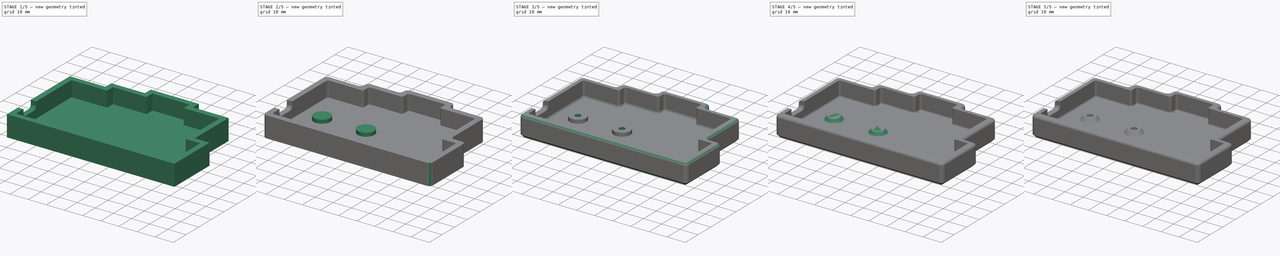
[diagram: build sequence overview — one tinted view per stage of 5, left to right]
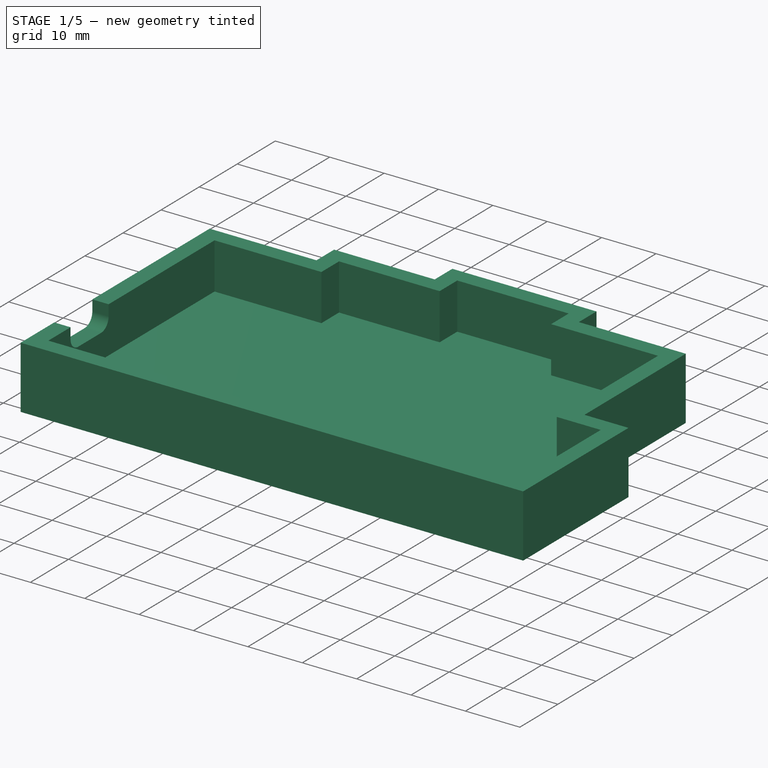
[diagram: stage 1 of 5 — iso view after this stage's code; geometry added in this stage tinted green]
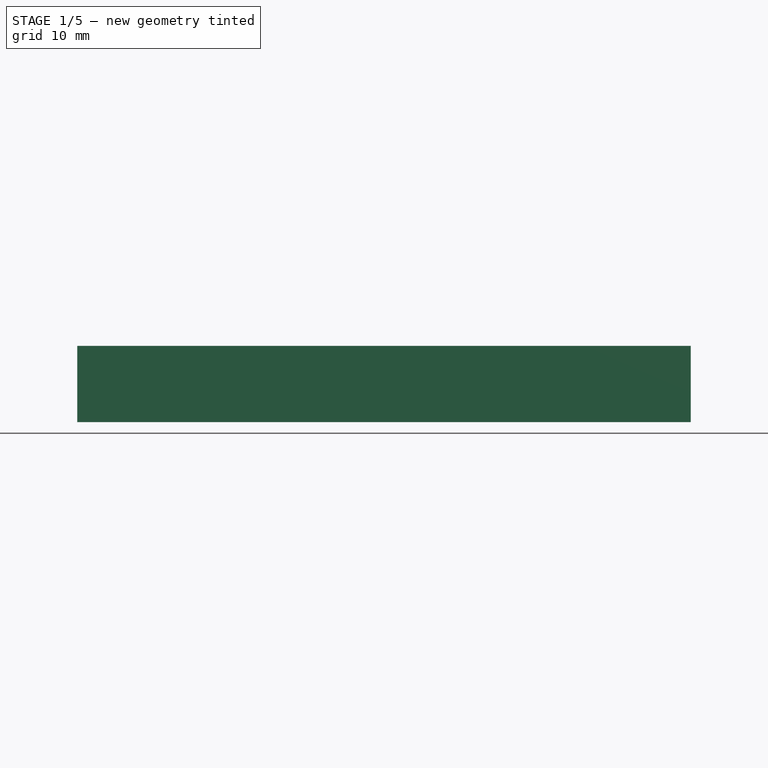
[diagram: stage 1 of 5 — front view after this stage's code; geometry added in this stage tinted green]
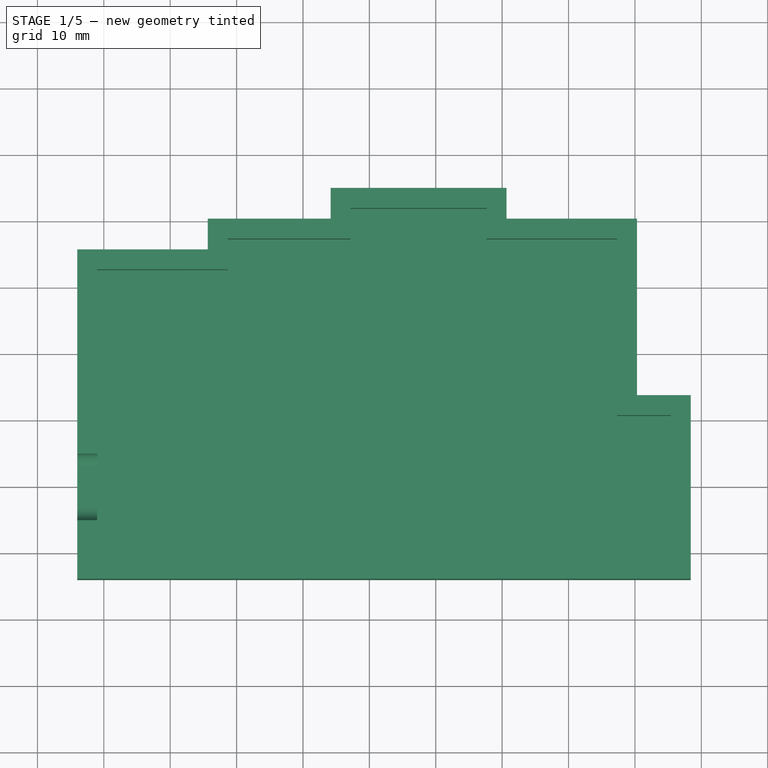
[diagram: stage 1 of 5 — top view after this stage's code; geometry added in this stage tinted green]
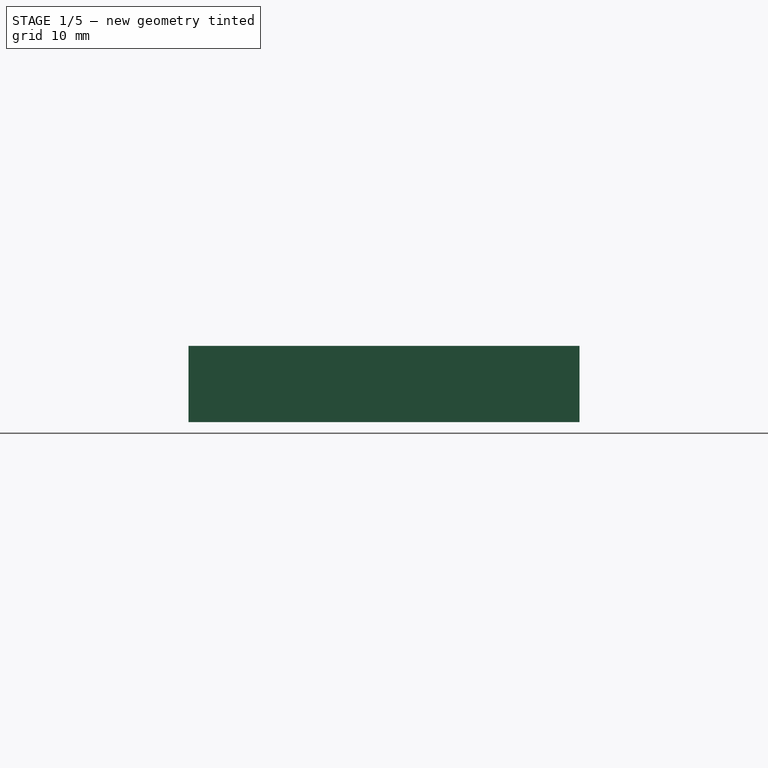
[diagram: stage 1 of 5 — right view after this stage's code; geometry added in this stage tinted green]
FCSTD DOCUMENT  (FreeCAD 0.19R)
Label: Comb03xD
License: All rights reserved
LicenseURL: http://en.wikipedia.org/wiki/All_rights_reserved
objects: Sketcher::SketchObject×8, PartDesign::Fillet×5, PartDesign::Pad×4, PartDesign::Pocket×4, PartDesign::Chamfer×3, PartDesign::Body×2
note: 42 computed .brp shape members not serialized (recipe doc carries the construction recipe); baked Part::Feature solids carry a one-line shape summary decoded from their .brp

FEATURE [PartDesign::Body] Body
  Group = -> [Sketch,Pad,Sketch001,Pad001,Chamfer,Sketch002,Pocket,Fillet]
  Origin = -> Origin
  Tip = -> Fillet
FEATURE [Sketcher::SketchObject] Sketch003
  FullyConstrained = true
  MapMode = 5
  Support = -> [XY_Plane001]
  sketch-geometry (34):
    g0: LineSegment StartX=0 StartY=0 StartZ=0 EndX=0 EndY=41.625 EndZ=0
    g1: LineSegment StartX=0 StartY=41.625 StartZ=0 EndX=19.656 EndY=41.625 EndZ=0
    g2: LineSegment StartX=19.656 StartY=41.625 StartZ=0 EndX=19.656 EndY=46.25 EndZ=0
    g3: LineSegment StartX=19.656 StartY=46.25 StartZ=0 EndX=38.156 EndY=46.25 EndZ=0
    g4: LineSegment StartX=38.156 StartY=46.25 StartZ=0 EndX=38.156 EndY=48.563 EndZ=0
    g5: LineSegment StartX=38.156 StartY=48.563 StartZ=0 EndX=56.656 EndY=48.563 EndZ=0
    g6: LineSegment StartX=56.656 StartY=48.563 StartZ=0 EndX=56.656 EndY=46.25 EndZ=0
    g7: LineSegment StartX=56.656 StartY=46.25 StartZ=0 EndX=76.312 EndY=46.25 EndZ=0
    g8: LineSegment StartX=76.312 StartY=46.25 StartZ=0 EndX=76.312 EndY=19.656 EndZ=0
    g9: LineSegment StartX=76.312 StartY=19.656 StartZ=0 EndX=84.406 EndY=19.656 EndZ=0
    g10: LineSegment StartX=84.406 StartY=19.656 StartZ=0 EndX=84.406 EndY=0 EndZ=0
    g11: LineSegment StartX=84.406 StartY=0 StartZ=0 EndX=0 EndY=0 EndZ=0
    g12: LineSegment StartX=-4 StartY=-4 StartZ=0 EndX=88.406 EndY=-4 EndZ=0
    g13: LineSegment StartX=88.406 StartY=-4 StartZ=0 EndX=88.406 EndY=23.656 EndZ=0
    g14: LineSegment StartX=88.406 StartY=23.656 StartZ=0 EndX=80.312 EndY=23.656 EndZ=0
    g15: LineSegment StartX=80.312 StartY=23.656 StartZ=0 EndX=80.312 EndY=50.25 EndZ=0
    g16: LineSegment StartX=80.312 StartY=50.25 StartZ=0 EndX=60.656 EndY=50.25 EndZ=0
    g17: LineSegment StartX=60.656 StartY=50.25 StartZ=0 EndX=60.656 EndY=54.875 EndZ=0
    g18: LineSegment StartX=60.656 StartY=54.875 StartZ=0 EndX=34.156 EndY=54.875 EndZ=0
    g19: LineSegment StartX=34.156 StartY=54.875 StartZ=0 EndX=34.156 EndY=50.25 EndZ=0
    g20: LineSegment StartX=34.156 StartY=50.25 StartZ=0 EndX=15.656 EndY=50.25 EndZ=0
    g21: LineSegment StartX=15.656 StartY=50.25 StartZ=0 EndX=15.656 EndY=45.625 EndZ=0
    g22: LineSegment StartX=15.656 StartY=45.625 StartZ=0 EndX=-4 EndY=45.625 EndZ=0
    g23: LineSegment StartX=-4 StartY=45.625 StartZ=0 EndX=-4 EndY=-4 EndZ=0
    g24: LineSegment StartX=-4 StartY=-4 StartZ=0 EndX=0 EndY=0 EndZ=0
    g25: LineSegment StartX=84.406 StartY=0 StartZ=0 EndX=88.406 EndY=-4 EndZ=0
    g26: LineSegment StartX=84.406 StartY=19.656 StartZ=0 EndX=88.406 EndY=23.656 EndZ=0
    g27: LineSegment StartX=76.312 StartY=19.656 StartZ=0 EndX=80.312 EndY=23.656 EndZ=0
    g28: LineSegment StartX=76.312 StartY=46.25 StartZ=0 EndX=80.312 EndY=50.25 EndZ=0
    g29: LineSegment StartX=56.656 StartY=46.25 StartZ=0 EndX=60.656 EndY=50.25 EndZ=0
    g30: LineSegment StartX=34.156 StartY=50.25 StartZ=0 EndX=38.156 EndY=46.25 EndZ=0
    g31: LineSegment StartX=15.656 StartY=50.25 StartZ=0 EndX=19.656 EndY=46.25 EndZ=0
    g32: LineSegment StartX=15.656 StartY=45.625 StartZ=0 EndX=19.656 EndY=41.625 EndZ=0
    g33: LineSegment StartX=-4 StartY=45.625 StartZ=0 EndX=0 EndY=41.625 EndZ=0
  constraints (91):
    c: Coincident(g0,g-1)
    c: Coincident(g1,g0)
    c: Horizontal(g1)
    c: Coincident(g2,g1)
    c: Coincident(g3,g2)
    c: Horizontal(g3)
    c: Coincident(g4,g3)
    c: Vertical(g4)
    c: Coincident(g5,g4)
    c: Horizontal(g5)
    c: Coincident(g6,g5)
    c: Coincident(g7,g6)
    c: Horizontal(g7)
    c: Coincident(g8,g7)
    c: Vertical(g8)
    c: Coincident(g9,g8)
    c: Coincident(g10,g9)
    c: Coincident(g11,g10)
    c: Coincident(g11,g0)
    c: Horizontal(g11)
    c: Vertical(g10)
    c: Horizontal(g9)
    c: Vertical(g2)
    c: Vertical(g6)
    c: Vertical(g0)
    c: DistanceX(g11,g11) = 84.406
    c: Equal(g10,g1)
    c: Equal(g1,g7)
    c: Equal(g3,g5)
    c: DistanceX(g3,g3) = 18.5
    c: DistanceX(g1,g1) = 19.656
    c: DistanceY(g8,g8) = 26.594
    c: Equal(g4,g6)
    c: DistanceY(g2,g2) = 4.625
    c: DistanceY(g6,g6) = 2.313
    c: Horizontal(g12)
    c: Coincident(g13,g12)
    c: Vertical(g13)
    c: Coincident(g14,g13)
    c: Horizontal(g14)
    c: Coincident(g15,g14)
    c: Vertical(g15)
    c: Coincident(g16,g15)
    c: Horizontal(g16)
    c: Coincident(g17,g16)
    c: Vertical(g17)
    c: Coincident(g18,g17)
    c: Horizontal(g18)
    c: Coincident(g19,g18)
    c: Coincident(g20,g19)
    c: Horizontal(g20)
    c: Vertical(g19)
    c: Coincident(g21,g20)
    c: Vertical(g21)
    c: Coincident(g22,g21)
    c: Horizontal(g22)
    c: Coincident(g23,g22)
    c: Coincident(g23,g12)
    c: Vertical(g23)
    c: Coincident(g24,g12)
    c: Coincident(g24,g-1)
    c: Coincident(g25,g10)
    c: Coincident(g25,g12)
    c: Coincident(g26,g9)
    c: Coincident(g26,g13)
    c: Equal(g26,g25)
    c: Equal(g25,g24)
    c: DistanceX(g24,g24) = 4
    c: DistanceY(g12,g-1) = 4
    c: Coincident(g27,g8)
    c: Coincident(g27,g14)
    c: Coincident(g28,g7)
    c: Coincident(g28,g15)
    c: Coincident(g29,g6)
    c: Coincident(g29,g16)
    c: Coincident(g30,g19)
    c: Coincident(g30,g3)
    c: Coincident(g31,g20)
    c: Coincident(g31,g2)
    c: Coincident(g32,g21)
    c: Coincident(g32,g1)
    c: Coincident(g33,g22)
    c: Coincident(g33,g0)
    c: Equal(g33,g32)
    c: Equal(g32,g31)
    c: Equal(g31,g30)
    c: Equal(g30,g29)
    c: Equal(g29,g28)
    c: Equal(g28,g27)
    c: Equal(g27,g26)
    c: Equal(g21,g19)
FEATURE [PartDesign::Pad] Pad002
  Direction = (1,1,1)
  Length = 11.5
  Length2 = 100
  Profile = -> Sketch003
  Type = 0
FEATURE [Sketcher::SketchObject] Sketch004
  ExternalGeometry = -> [Pad002]
  FullyConstrained = true
  MapMode = 5
  Placement = pos=(0,0,11.5) rot=(0,0,1;0rad)
  Support = -> [Pad002]
  sketch-geometry (24):
    g0: LineSegment StartX=-1 StartY=42.625 StartZ=0 EndX=18.656 EndY=42.625 EndZ=0
    g1: LineSegment StartX=18.656 StartY=42.625 StartZ=0 EndX=18.656 EndY=47.25 EndZ=0
    g2: LineSegment StartX=18.656 StartY=47.25 StartZ=0 EndX=37.156 EndY=47.25 EndZ=0
    g3: LineSegment StartX=37.156 StartY=47.25 StartZ=0 EndX=37.156 EndY=51.875 EndZ=0
    g4: LineSegment StartX=37.156 StartY=51.875 StartZ=0 EndX=57.656 EndY=51.875 EndZ=0
    g5: LineSegment StartX=57.656 StartY=51.875 StartZ=0 EndX=57.656 EndY=47.25 EndZ=0
    g6: LineSegment StartX=57.656 StartY=47.25 StartZ=0 EndX=77.312 EndY=47.25 EndZ=0
    g7: LineSegment StartX=77.312 StartY=47.25 StartZ=0 EndX=77.312 EndY=20.656 EndZ=0
    g8: LineSegment StartX=77.312 StartY=20.656 StartZ=0 EndX=85.406 EndY=20.656 EndZ=0
    g9: LineSegment StartX=85.406 StartY=20.656 StartZ=0 EndX=85.406 EndY=-1 EndZ=0
    g10: LineSegment StartX=-4 StartY=45.625 StartZ=0 EndX=-1 EndY=42.625 EndZ=0
    g11: LineSegment StartX=15.656 StartY=45.625 StartZ=0 EndX=18.656 EndY=42.625 EndZ=0
    g12: LineSegment StartX=18.656 StartY=47.25 StartZ=0 EndX=15.656 EndY=50.25 EndZ=0
    g13: LineSegment StartX=34.156 StartY=50.25 StartZ=0 EndX=37.156 EndY=47.25 EndZ=0
    g14: LineSegment StartX=37.156 StartY=51.875 StartZ=0 EndX=34.156 EndY=54.875 EndZ=0
    g15: LineSegment StartX=57.656 StartY=51.875 StartZ=0 EndX=60.656 EndY=54.875 EndZ=0
    g16: LineSegment StartX=60.656 StartY=50.25 StartZ=0 EndX=57.656 EndY=47.25 EndZ=0
    g17: LineSegment StartX=77.312 StartY=47.25 StartZ=0 EndX=80.312 EndY=50.25 EndZ=0
    g18: LineSegment StartX=77.312 StartY=20.656 StartZ=0 EndX=80.312 EndY=23.656 EndZ=0
    g19: LineSegment StartX=88.406 StartY=23.656 StartZ=0 EndX=85.406 EndY=20.656 EndZ=0
    g20: LineSegment StartX=85.406 StartY=-1 StartZ=0 EndX=88.406 EndY=-4 EndZ=0
    g21: LineSegment StartX=-4 StartY=-4 StartZ=0 EndX=-1 EndY=-1 EndZ=0
    g22: LineSegment StartX=-1 StartY=-1 StartZ=0 EndX=85.406 EndY=-1 EndZ=0
    g23: LineSegment StartX=-1 StartY=-1 StartZ=0 EndX=-1 EndY=42.625 EndZ=0
  constraints (60):
    c: Horizontal(g0)
    c: Coincident(g1,g0)
    c: Vertical(g1)
    c: Coincident(g2,g1)
    c: Horizontal(g2)
    c: Coincident(g3,g2)
    c: Vertical(g3)
    c: Coincident(g4,g3)
    c: Horizontal(g4)
    c: Coincident(g5,g4)
    c: Vertical(g5)
    c: Coincident(g6,g5)
    c: Horizontal(g6)
    c: Coincident(g7,g6)
    c: Vertical(g7)
    c: Coincident(g8,g7)
    c: Horizontal(g8)
    c: Coincident(g9,g8)
    c: Vertical(g9)
    c: Coincident(g10,g-3)
    c: Coincident(g11,g-4)
    c: Coincident(g11,g0)
    c: Coincident(g12,g1)
    c: Coincident(g12,g-5)
    c: Coincident(g13,g-6)
    c: Coincident(g13,g2)
    c: Coincident(g14,g3)
    c: Coincident(g14,g-7)
    c: Coincident(g15,g4)
    c: Coincident(g15,g-8)
    c: Coincident(g16,g-9)
    c: Coincident(g16,g5)
    c: Coincident(g17,g6)
    c: Coincident(g17,g-10)
    c: Coincident(g18,g7)
    c: Coincident(g18,g-11)
    c: Coincident(g19,g-12)
    c: Coincident(g19,g8)
    c: Coincident(g20,g9)
    c: Coincident(g20,g-13)
    c: Equal(g10,g11)
    c: Equal(g11,g12)
    c: Equal(g12,g13)
    c: Equal(g13,g14)
    c: Equal(g14,g15)
    c: Equal(g15,g16)
    c: Equal(g16,g17)
    c: Equal(g17,g18)
    c: Equal(g18,g19)
    c: Coincident(g21,g-14)
    c: Coincident(g22,g21)
    c: Horizontal(g22)
    c: Coincident(g9,g22)
    c: Coincident(g23,g22)
    c: Coincident(g23,g10)
    c: Vertical(g23)
    c: Coincident(g0,g23)
    c: Equal(g21,g10)
    c: DistanceX(g21,g21) = 3
    c: DistanceY(g21,g22) = 3
FEATURE [PartDesign::Pocket] Pocket001
  BaseFeature = -> Pad002
  Length = 8.5
  Length2 = 100
  Profile = -> Sketch004
  Type = 0
  expr: Length = 11.5 - 3
FEATURE [Sketcher::SketchObject] Sketch005
  ExternalGeometry = -> [Pocket001]
  FullyConstrained = true
  MapMode = 5
  Placement = pos=(85.406,0,0) rot=(0.57735,-0.57735,-0.57735;2.0944rad)
  Support = -> [Pocket001]
  sketch-geometry (8):
    g0: LineSegment StartX=-14.828 StartY=11.5 StartZ=0 EndX=-14.828 EndY=9.5 EndZ=0
    g1: LineSegment StartX=-4.828 StartY=11.5 StartZ=0 EndX=-4.828 EndY=9.5 EndZ=0
    g2: LineSegment StartX=-4.828 StartY=11.5 StartZ=0 EndX=-14.828 EndY=11.5 EndZ=0
    g3: ArcOfCircle CenterX=-12.828 CenterY=9.5 CenterZ=0 NormalX=0 NormalY=0 NormalZ=1 AngleXU=0 Radius=2 StartAngle=3.14159 EndAngle=4.71239
    g4: ArcOfCircle CenterX=-6.828 CenterY=9.5 CenterZ=0 NormalX=0 NormalY=0 NormalZ=1 AngleXU=0 Radius=2 StartAngle=4.71239 EndAngle=6.28319
    g5: LineSegment StartX=-12.828 StartY=7.5 StartZ=0 EndX=-6.828 EndY=7.5 EndZ=0
    g6: LineSegment StartX=-20.656 StartY=11.5 StartZ=0 EndX=-14.828 EndY=11.5 EndZ=0
    g7: LineSegment StartX=-4.828 StartY=11.5 StartZ=0 EndX=1 EndY=11.5 EndZ=0
  constraints (24):
    c: PointOnObject(g0,g-3)
    c: Vertical(g0)
    c: PointOnObject(g1,g-3)
    c: Vertical(g1)
    c: Coincident(g2,g1)
    c: Coincident(g2,g0)
    c: Coincident(g3,g0)
    c: Coincident(g4,g1)
    c: Horizontal(g0,g3)
    c: Horizontal(g3,g4)
    c: Horizontal(g4,g1)
    c: Vertical(g3,g3)
    c: Vertical(g4,g4)
    c: Coincident(g5,g3)
    c: Coincident(g5,g4)
    c: Horizontal(g5)
    c: DistanceX(g2,g2) = 10
    c: DistanceY(g1,g1) = 2
    c: Radius(g4) = 2
    c: Coincident(g6,g-3)
    c: Coincident(g6,g0)
    c: Coincident(g7,g1)
    c: Coincident(g7,g-3)
    c: Equal(g6,g7)
FEATURE [PartDesign::Pocket] Pocket002
  BaseFeature = -> Pocket001
  Length = 97
  Length2 = 100
  Profile = -> Sketch005
  Reversed = true
  Type = 0
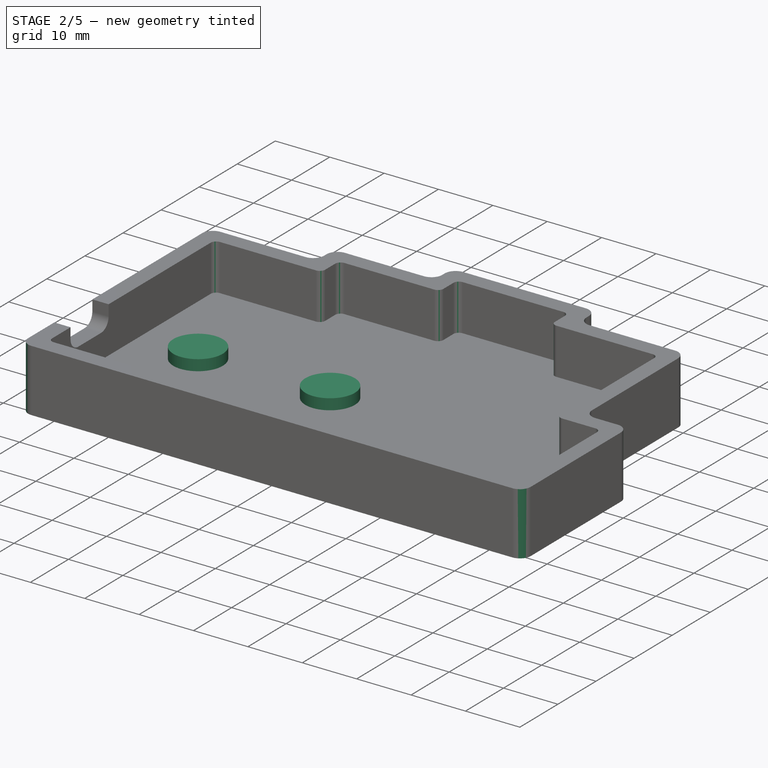
[diagram: stage 2 of 5 — iso view after this stage's code; geometry added in this stage tinted green]
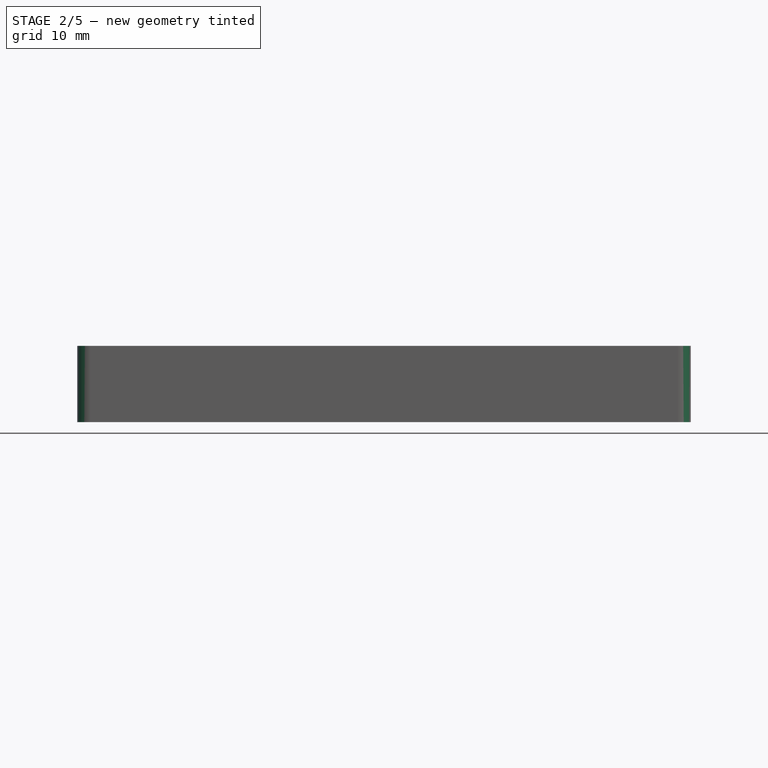
[diagram: stage 2 of 5 — front view after this stage's code; geometry added in this stage tinted green]
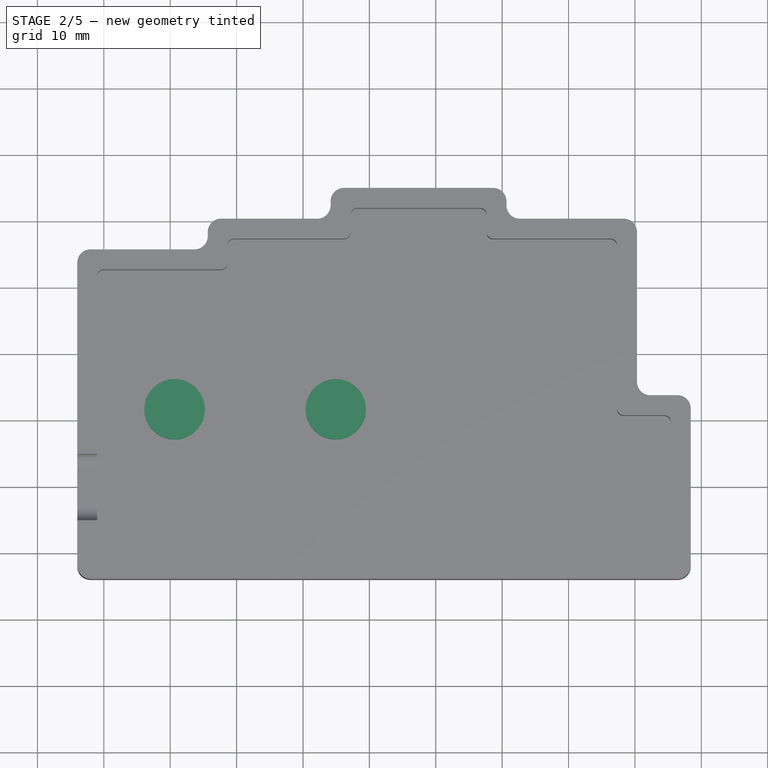
[diagram: stage 2 of 5 — top view after this stage's code; geometry added in this stage tinted green]
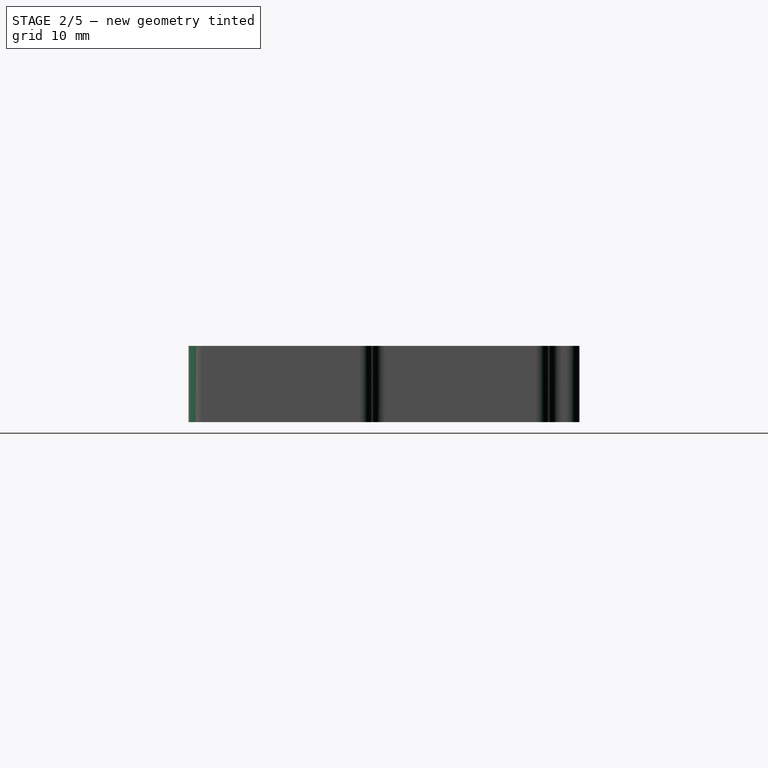
[diagram: stage 2 of 5 — right view after this stage's code; geometry added in this stage tinted green]
FEATURE [Sketcher::SketchObject] Sketch006
  FullyConstrained = true
  MapMode = 5
  Placement = pos=(0,0,3) rot=(0,0,1;0rad)
  sketch-geometry (5):
    g0: LineSegment StartX=0 StartY=21.655 StartZ=0 EndX=10.656 EndY=21.655 EndZ=0
    g1: LineSegment StartX=10.656 StartY=21.655 StartZ=0 EndX=10.656 EndY=0 EndZ=0
    g2: LineSegment StartX=10.656 StartY=21.655 StartZ=0 EndX=34.937 EndY=21.655 EndZ=0
    g3: Circle CenterX=10.656 CenterY=21.655 CenterZ=0 NormalX=0 NormalY=0 NormalZ=1 AngleXU=0 Radius=4.55
    g4: Circle CenterX=34.937 CenterY=21.655 CenterZ=0 NormalX=0 NormalY=0 NormalZ=1 AngleXU=0 Radius=4.55
  constraints (14):
    c: PointOnObject(g0,g-2)
    c: Horizontal(g0)
    c: Coincident(g1,g0)
    c: PointOnObject(g1,g-1)
    c: Vertical(g1)
    c: Coincident(g2,g0)
    c: Horizontal(g2)
    c: DistanceX(g2,g2) = 24.281
    c: DistanceX(g0,g0) = 10.656
    c: DistanceY(g1,g1) = 21.655
    c: Coincident(g3,g0)
    c: Coincident(g4,g2)
    c: Equal(g4,g3)
    c: Diameter(g4) = 9.1
FEATURE [PartDesign::Pad] Pad003
  BaseFeature = -> Pocket002
  Direction = (1,1,1)
  Length = 2
  Length2 = 100
  Profile = -> Sketch006
  Type = 0
FEATURE [PartDesign::Fillet] Fillet001
  Base = -> Pad003 [Edge95,Edge69,Edge93,Edge91,Edge89,Edge85,Edge81,Edge87,Edge83,Edge80,Edge72,Edge71]
  BaseFeature = -> Pad003
  Radius = 1
  SupportTransform = false
FEATURE [PartDesign::Fillet] Fillet002
  Base = -> Fillet001 [Edge58,Edge66,Edge75,Edge77,Edge79,Edge83,Edge87,Edge91,Edge99,Edge63,Edge95,Edge103]
  BaseFeature = -> Fillet001
  Radius = 2
  SupportTransform = false
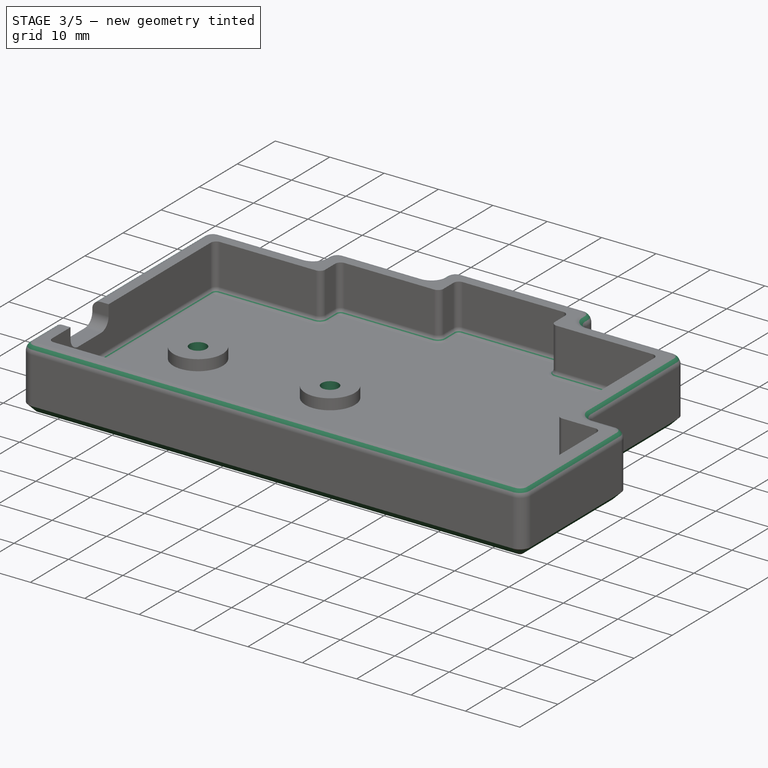
[diagram: stage 3 of 5 — iso view after this stage's code; geometry added in this stage tinted green]
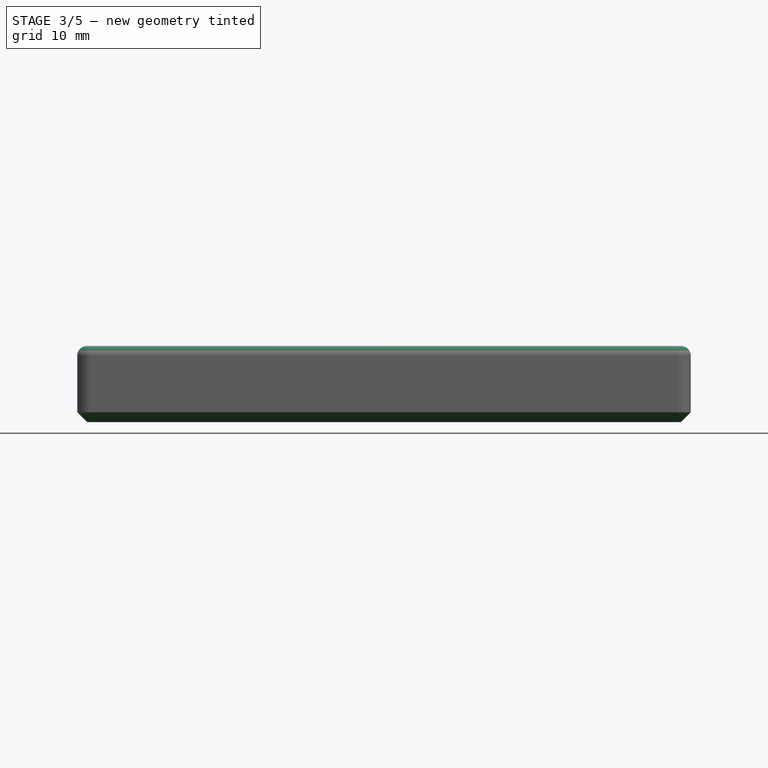
[diagram: stage 3 of 5 — front view after this stage's code; geometry added in this stage tinted green]
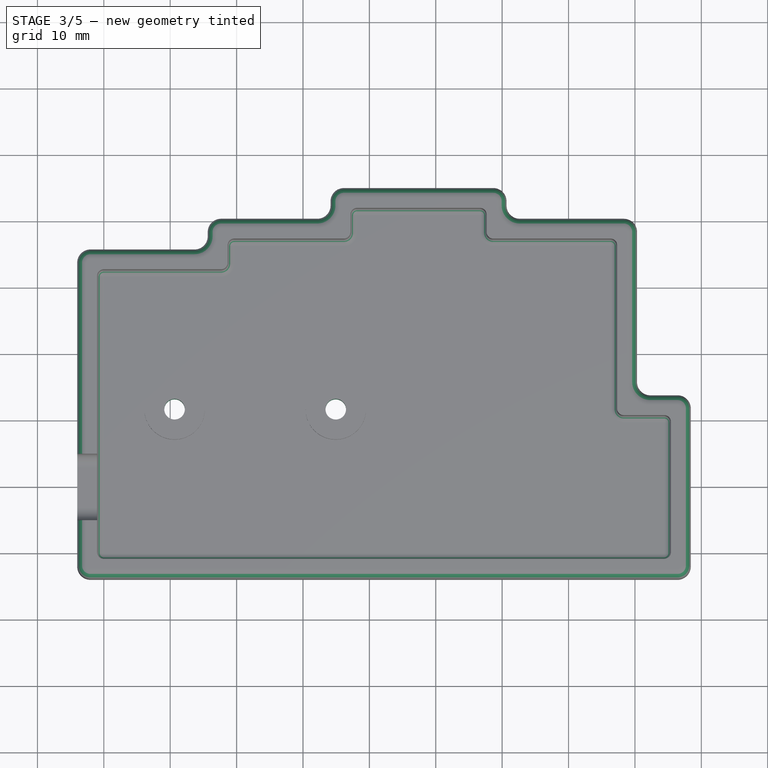
[diagram: stage 3 of 5 — top view after this stage's code; geometry added in this stage tinted green]
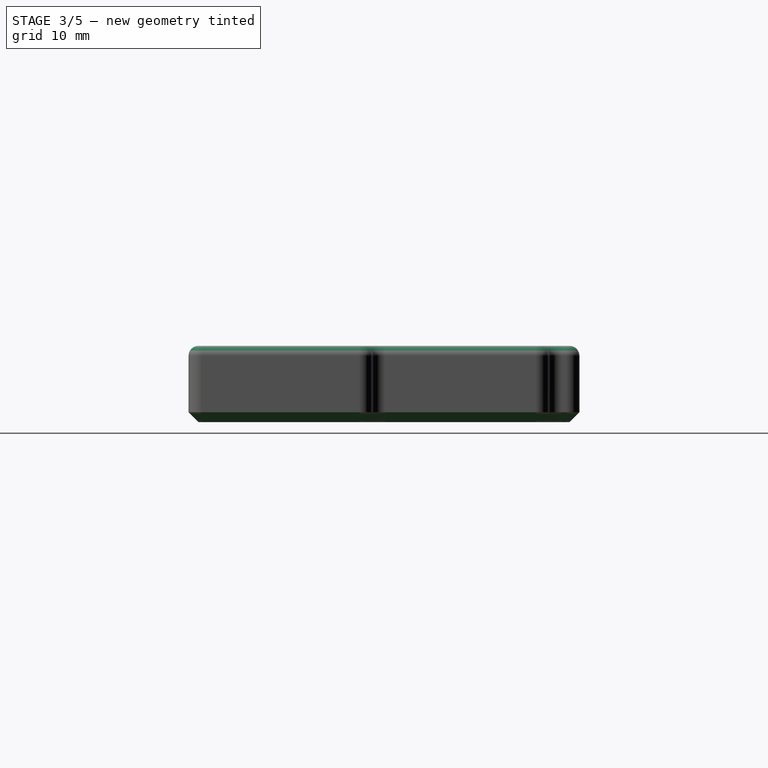
[diagram: stage 3 of 5 — right view after this stage's code; geometry added in this stage tinted green]
FEATURE [PartDesign::Fillet] Fillet003
  Base = -> Fillet002 [Edge4]
  BaseFeature = -> Fillet002
  Radius = 1.5
  SupportTransform = false
FEATURE [PartDesign::Chamfer] Chamfer001
  Angle = 45
  Base = -> Fillet003 [Edge180]
  BaseFeature = -> Fillet003
  ChamferType = 0
  FlipDirection = false
  Size = 1.5
  Size2 = 1
  SupportTransform = false
FEATURE [PartDesign::Fillet] Fillet004
  Base = -> Chamfer001 [Edge226]
  BaseFeature = -> Chamfer001
  Radius = 1
  SupportTransform = false
FEATURE [Sketcher::SketchObject] Sketch007
  ExternalGeometry = -> [Fillet004]
  FullyConstrained = true
  MapMode = 5
  Placement = pos=(0,0,5) rot=(0,0,1;0rad)
  Support = -> [Fillet004]
  sketch-geometry (2):
    g0: Circle CenterX=10.656 CenterY=21.655 CenterZ=0 NormalX=0 NormalY=0 NormalZ=1 AngleXU=0 Radius=1.55
    g1: Circle CenterX=34.937 CenterY=21.655 CenterZ=0 NormalX=0 NormalY=0 NormalZ=1 AngleXU=0 Radius=1.55
  constraints (4):
    c: Coincident(g0,g-3)
    c: Coincident(g1,g-4)
    c: Equal(g1,g0)
    c: Diameter(g1) = 3.1
FEATURE [PartDesign::Pocket] Pocket003
  BaseFeature = -> Fillet004
  Length = 5
  Length2 = 100
  Profile = -> Sketch007
  Type = 0
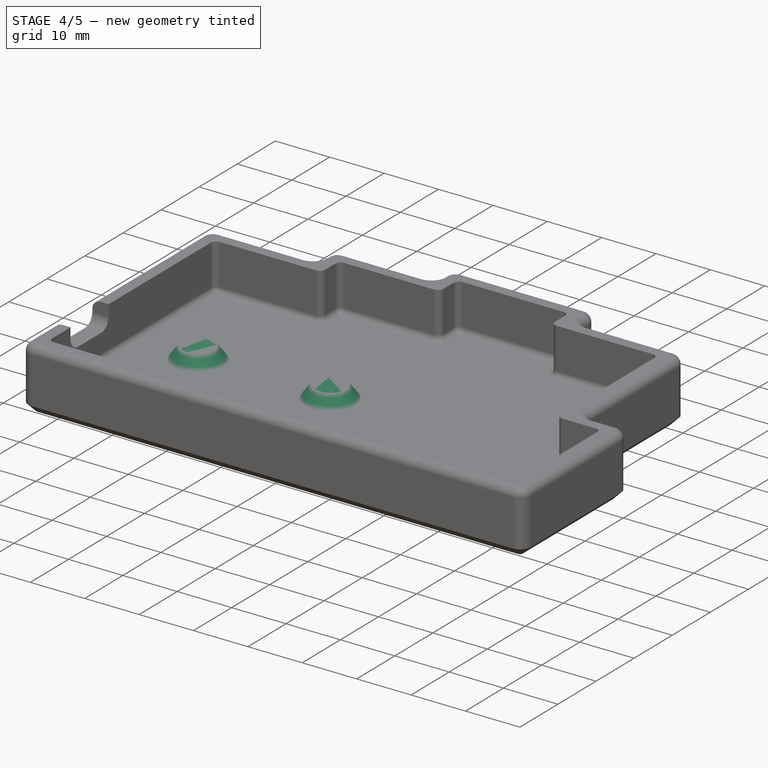
[diagram: stage 4 of 5 — iso view after this stage's code; geometry added in this stage tinted green]
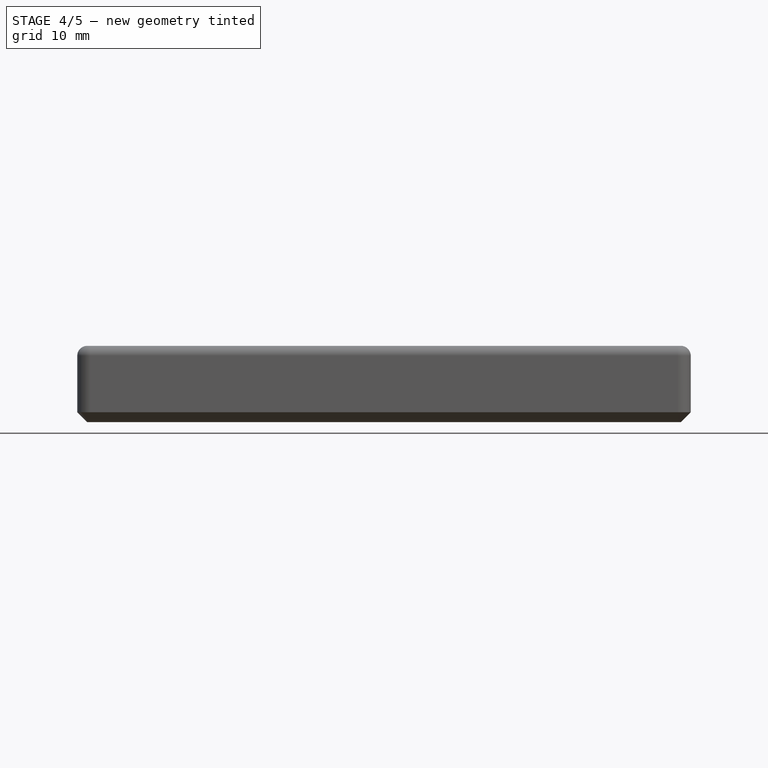
[diagram: stage 4 of 5 — front view after this stage's code; geometry added in this stage tinted green]
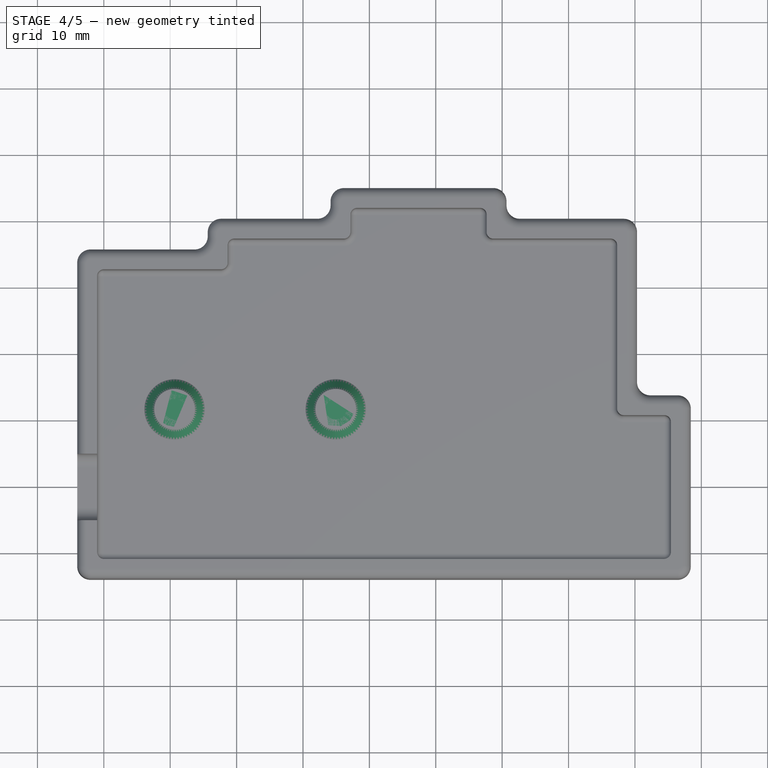
[diagram: stage 4 of 5 — top view after this stage's code; geometry added in this stage tinted green]
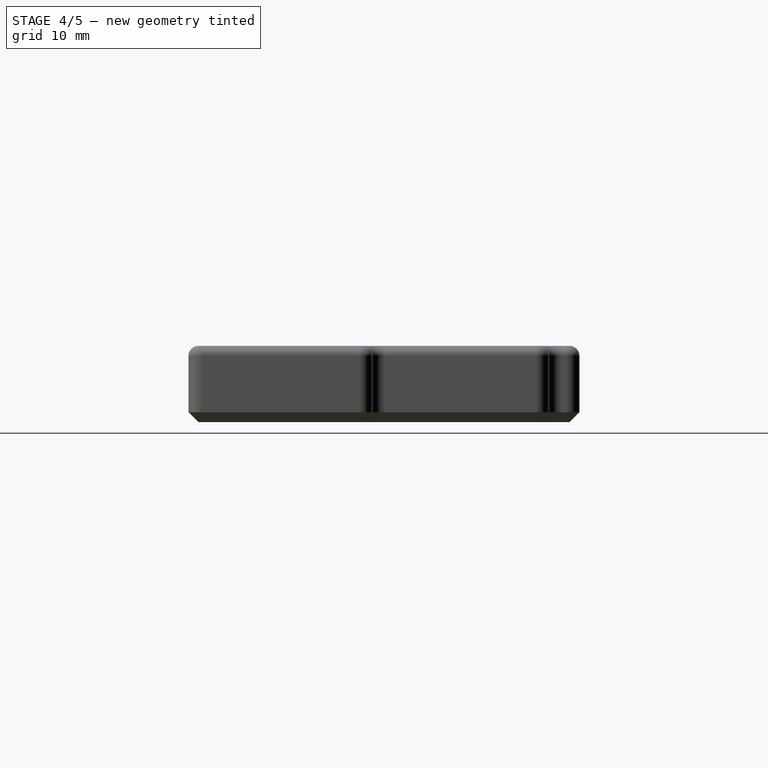
[diagram: stage 4 of 5 — right view after this stage's code; geometry added in this stage tinted green]
FEATURE [Sketcher::SketchObject] Sketch
  FullyConstrained = true
  MapMode = 5
  Support = -> [XY_Plane]
  sketch-geometry (12):
    g0: LineSegment StartX=0 StartY=0 StartZ=0 EndX=0 EndY=41.625 EndZ=0
    g1: LineSegment StartX=0 StartY=41.625 StartZ=0 EndX=19.656 EndY=41.625 EndZ=0
    g2: LineSegment StartX=19.656 StartY=41.625 StartZ=0 EndX=19.656 EndY=46.25 EndZ=0
    g3: LineSegment StartX=19.656 StartY=46.25 StartZ=0 EndX=38.156 EndY=46.25 EndZ=0
    g4: LineSegment StartX=38.156 StartY=46.25 StartZ=0 EndX=38.156 EndY=48.563 EndZ=0
    g5: LineSegment StartX=38.156 StartY=48.563 StartZ=0 EndX=56.656 EndY=48.563 EndZ=0
    g6: LineSegment StartX=56.656 StartY=48.563 StartZ=0 EndX=56.656 EndY=46.25 EndZ=0
    g7: LineSegment StartX=56.656 StartY=46.25 StartZ=0 EndX=76.312 EndY=46.25 EndZ=0
    g8: LineSegment StartX=76.312 StartY=46.25 StartZ=0 EndX=76.312 EndY=19.656 EndZ=0
    g9: LineSegment StartX=76.312 StartY=19.656 StartZ=0 EndX=84.406 EndY=19.656 EndZ=0
    g10: LineSegment StartX=84.406 StartY=19.656 StartZ=0 EndX=84.406 EndY=0 EndZ=0
    g11: LineSegment StartX=84.406 StartY=0 StartZ=0 EndX=0 EndY=0 EndZ=0
  constraints (35):
    c: Coincident(g0,g-1)
    c: Coincident(g1,g0)
    c: Horizontal(g1)
    c: Coincident(g2,g1)
    c: Coincident(g3,g2)
    c: Horizontal(g3)
    c: Coincident(g4,g3)
    c: Vertical(g4)
    c: Coincident(g5,g4)
    c: Horizontal(g5)
    c: Coincident(g6,g5)
    c: Coincident(g7,g6)
    c: Horizontal(g7)
    c: Coincident(g8,g7)
    c: Vertical(g8)
    c: Coincident(g9,g8)
    c: Coincident(g10,g9)
    c: Coincident(g11,g10)
    c: Coincident(g11,g0)
    c: Horizontal(g11)
    c: Vertical(g10)
    c: Horizontal(g9)
    c: Vertical(g2)
    c: Vertical(g6)
    c: Vertical(g0)
    c: DistanceX(g11,g11) = 84.406
    c: Equal(g10,g1)
    c: Equal(g1,g7)
    c: Equal(g3,g5)
    c: DistanceX(g3,g3) = 18.5
    c: DistanceX(g1,g1) = 19.656
    c: DistanceY(g8,g8) = 26.594
    c: Equal(g4,g6)
    c: DistanceY(g2,g2) = 4.625
    c: DistanceY(g6,g6) = 2.313
FEATURE [PartDesign::Pad] Pad
  Direction = (1,1,1)
  Length = 3
  Length2 = 100
  Profile = -> Sketch
  Type = 0
FEATURE [Sketcher::SketchObject] Sketch001
  FullyConstrained = true
  MapMode = 5
  Placement = pos=(0,0,3) rot=(0,0,1;0rad)
  Support = -> [Pad]
  expr: Constraints[11] = 3.1 + 2.4
  sketch-geometry (5):
    g0: LineSegment StartX=0 StartY=0 StartZ=0 EndX=34.938 EndY=0 EndZ=0
    g1: LineSegment StartX=34.938 StartY=0 StartZ=0 EndX=34.938 EndY=21.75 EndZ=0
    g2: LineSegment StartX=34.938 StartY=21.75 StartZ=0 EndX=10.657 EndY=21.75 EndZ=0
    g3: Circle CenterX=10.657 CenterY=21.75 CenterZ=0 NormalX=0 NormalY=0 NormalZ=1 AngleXU=0 Radius=2.75
    g4: Circle CenterX=34.938 CenterY=21.75 CenterZ=0 NormalX=0 NormalY=0 NormalZ=1 AngleXU=0 Radius=2.75
  constraints (13):
    c: Coincident(g0,g-1)
    c: PointOnObject(g0,g-1)
    c: Coincident(g1,g0)
    c: Vertical(g1)
    c: Coincident(g2,g1)
    c: Horizontal(g2)
    c: DistanceX(g0,g0) = 34.938
    c: DistanceY(g1,g1) = 21.75
    c: DistanceX(g2,g2) = 24.281
    c: Coincident(g3,g2)
    c: Coincident(g4,g1)
    c: Diameter(g4) = 5.5
    c: Equal(g3,g4)
FEATURE [PartDesign::Pad] Pad001
  BaseFeature = -> Pad
  Direction = (1,1,1)
  Length = 2
  Length2 = 100
  Profile = -> Sketch001
  Type = 0
FEATURE [PartDesign::Chamfer] Chamfer002
  Angle = 45
  Base = -> Pocket003 [Edge223,Edge221]
  BaseFeature = -> Pocket003
  ChamferType = 1
  FlipDirection = false
  Size = 1.99
  Size2 = 1.5
  SupportTransform = false
FEATURE [PartDesign::Body] Body001
  Group = -> [Sketch003,Pad002,Sketch004,Pocket001,Sketch005,Pocket002,Sketch006,Pad003,Fillet001,Fillet002,Fillet003,Chamfer001,Fillet004,Sketch007,Pocket003,Chamfer002]
  Origin = -> Origin001
  Tip = -> Chamfer002
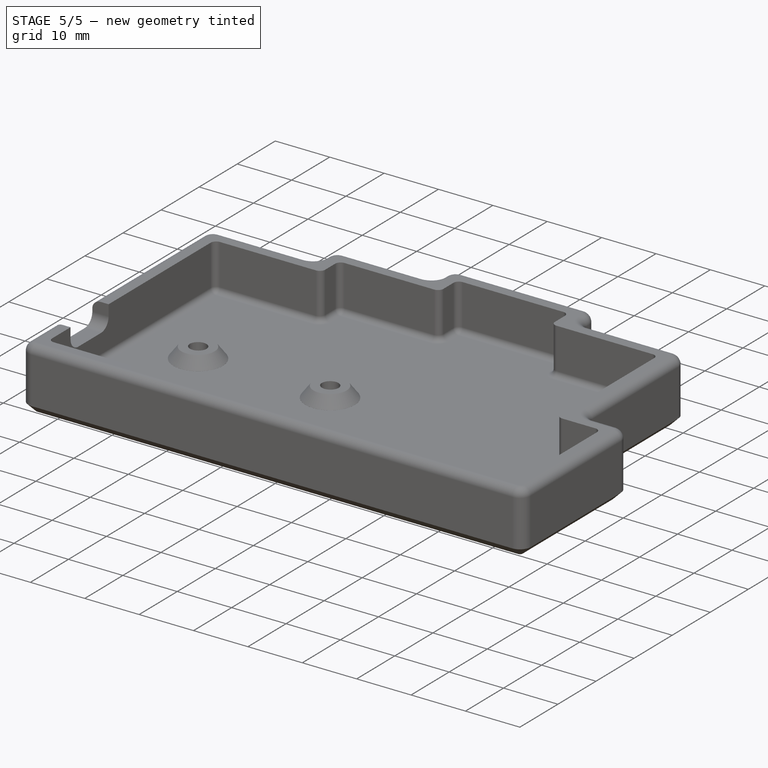
[diagram: stage 5 of 5 — iso view after this stage's code; geometry added in this stage tinted green]
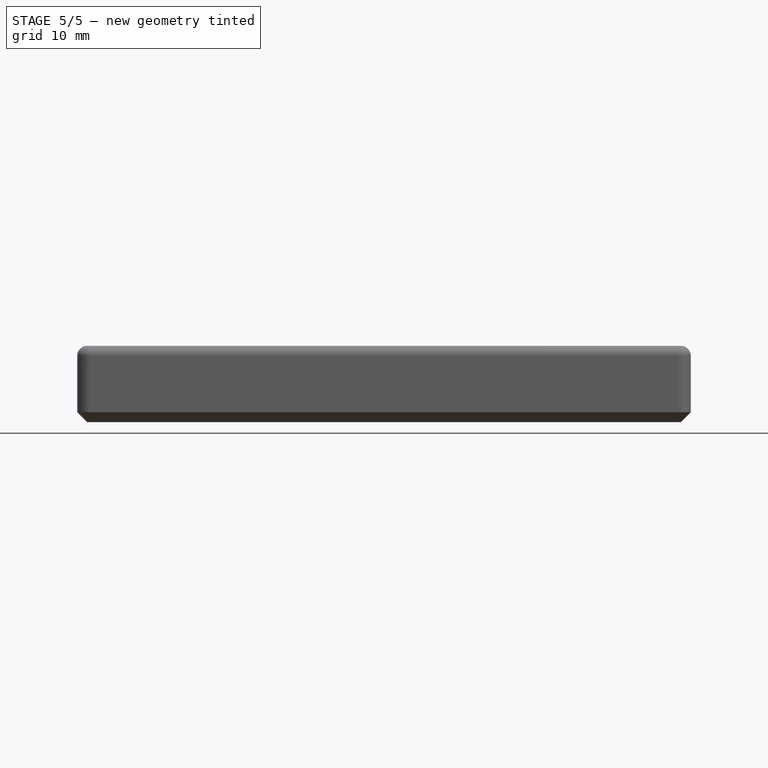
[diagram: stage 5 of 5 — front view after this stage's code; geometry added in this stage tinted green]
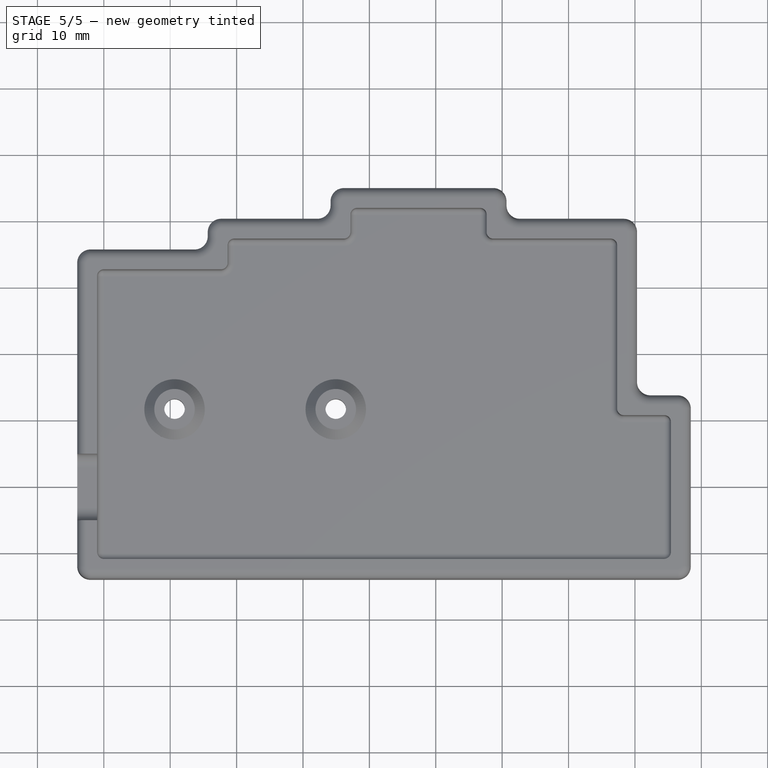
[diagram: stage 5 of 5 — top view after this stage's code; geometry added in this stage tinted green]
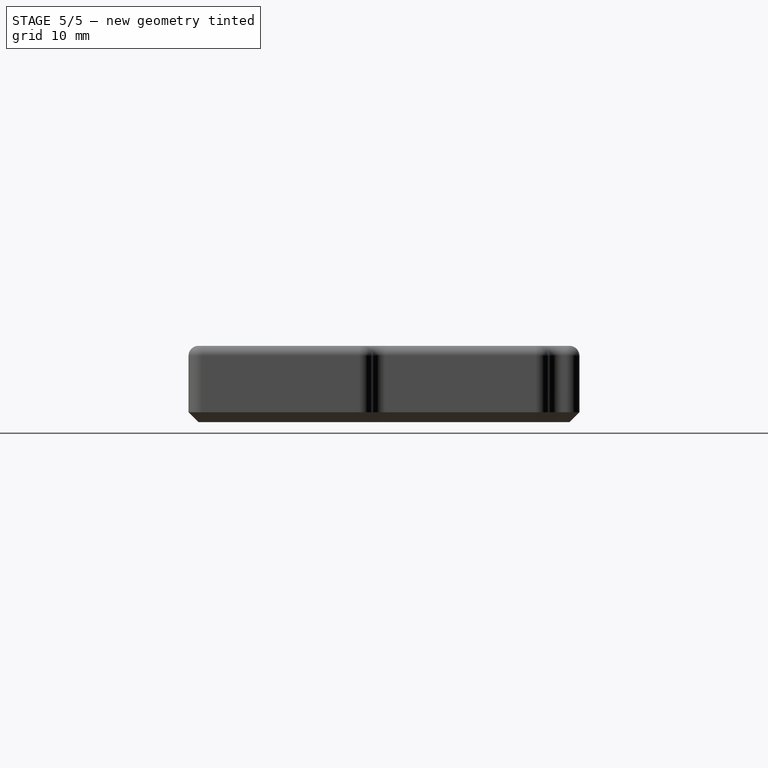
[diagram: stage 5 of 5 — right view after this stage's code; geometry added in this stage tinted green]
FEATURE [PartDesign::Chamfer] Chamfer
  Angle = 45
  Base = -> Pad001 [Edge30,Edge29]
  BaseFeature = -> Pad001
  ChamferType = 1
  FlipDirection = false
  Size = 1
  Size2 = 1.99
  SupportTransform = false
FEATURE [Sketcher::SketchObject] Sketch002
  ExternalGeometry = -> [Chamfer]
  FullyConstrained = true
  MapMode = 5
  Placement = pos=(0,0,5) rot=(0,0,1;0rad)
  Support = -> [Chamfer]
  sketch-geometry (2):
    g0: Circle CenterX=10.657 CenterY=21.75 CenterZ=0 NormalX=0 NormalY=0 NormalZ=1 AngleXU=0 Radius=1.55
    g1: Circle CenterX=34.938 CenterY=21.75 CenterZ=0 NormalX=0 NormalY=0 NormalZ=1 AngleXU=0 Radius=1.55
  constraints (4):
    c: Coincident(g0,g-3)
    c: Coincident(g1,g-4)
    c: Diameter(g1) = 3.1
    c: Equal(g0,g1)
FEATURE [PartDesign::Pocket] Pocket
  BaseFeature = -> Chamfer
  Length = 5
  Length2 = 100
  Profile = -> Sketch002
  Type = 0
FEATURE [PartDesign::Fillet] Fillet
  Base = -> Pocket [Edge20,Edge24,Edge28,Edge32,Edge36,Edge38,Edge34,Edge26,Edge18,Edge30,Edge22,Edge17]
  BaseFeature = -> Pocket
  Radius = 1.15625
  SupportTransform = false
  expr: Radius = 18.5 / 16
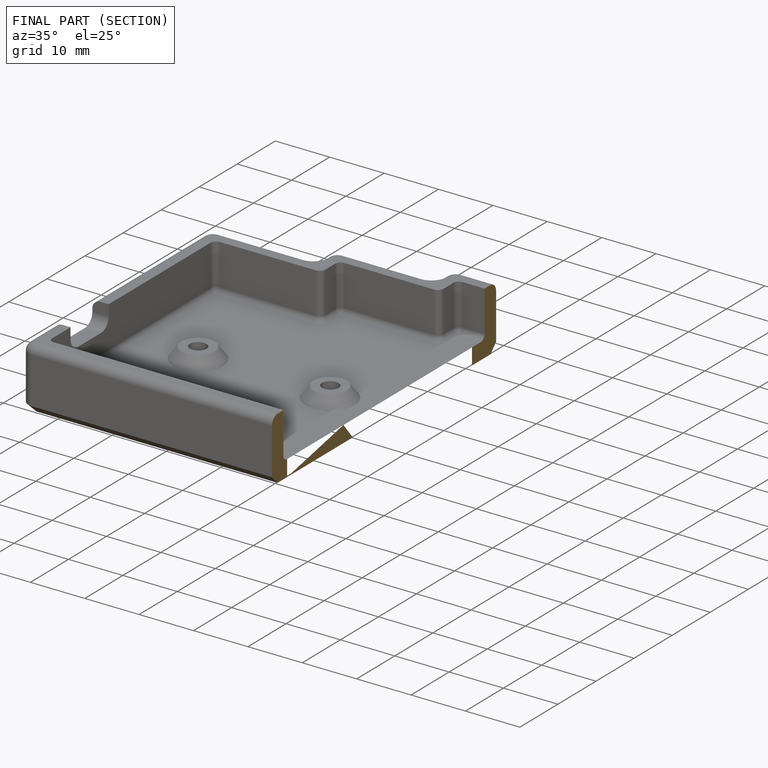
[diagram: finished part — half-section view (interior)]
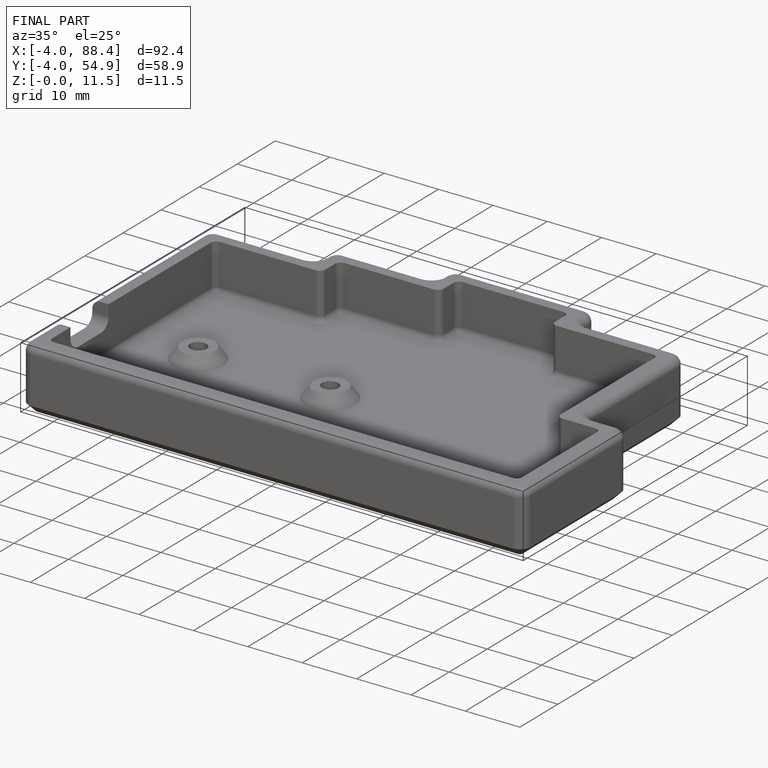
[diagram: finished part — iso view with bounding-box wireframe]
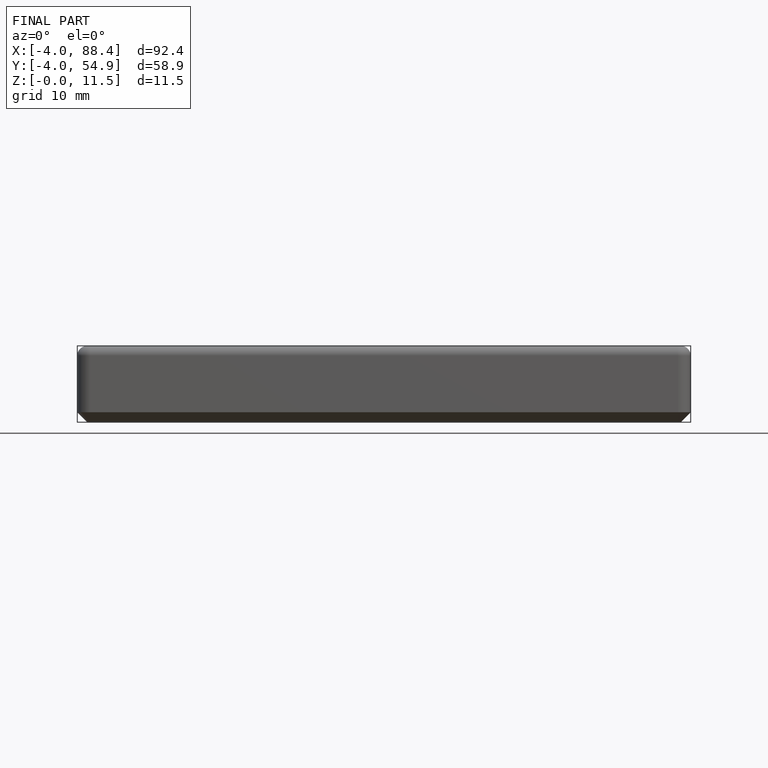
[diagram: finished part — front view with bounding-box wireframe]
